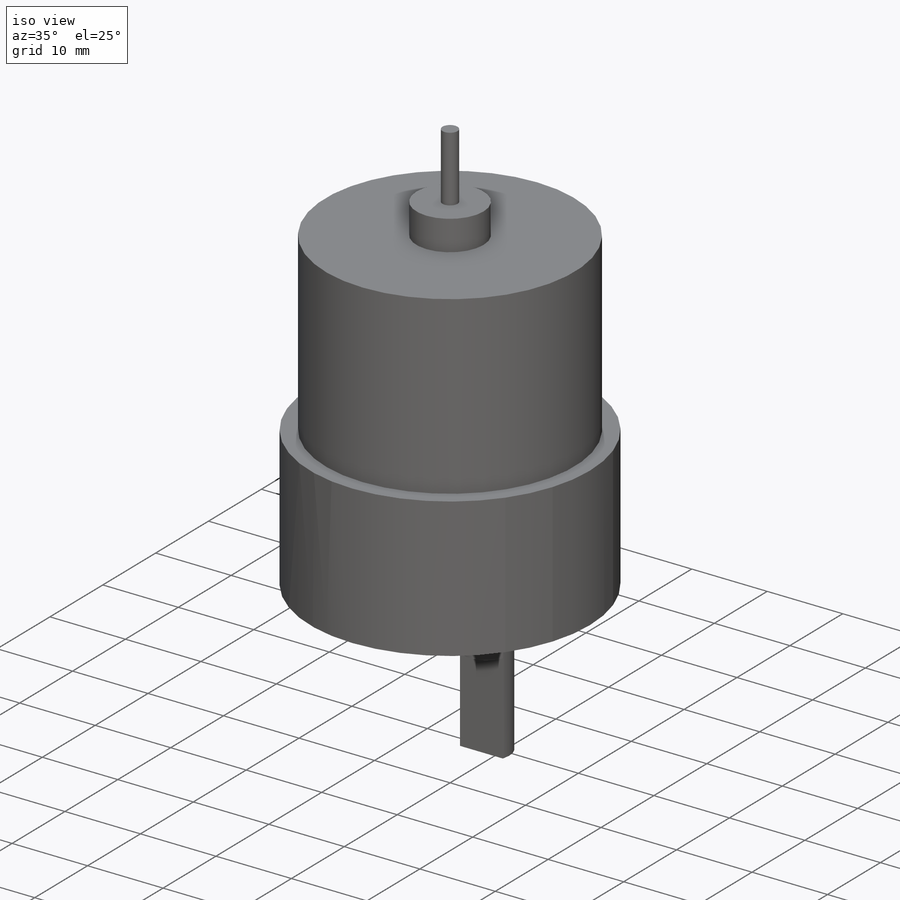
[diagram: iso view]
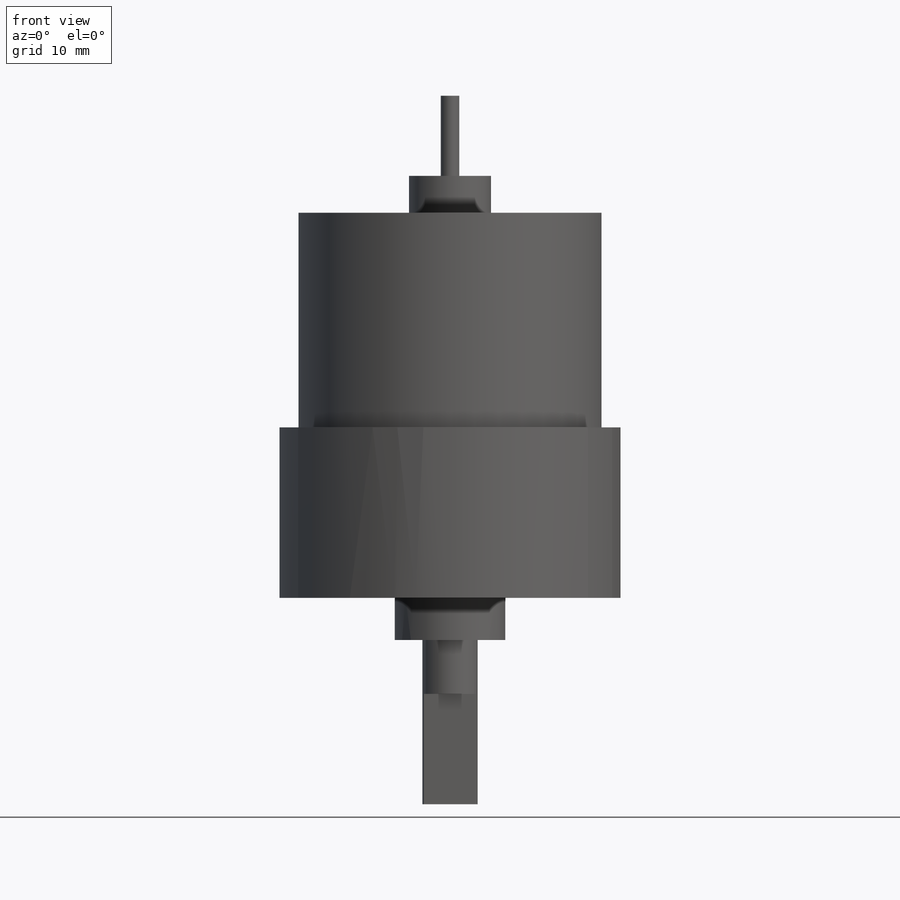
[diagram: front view]
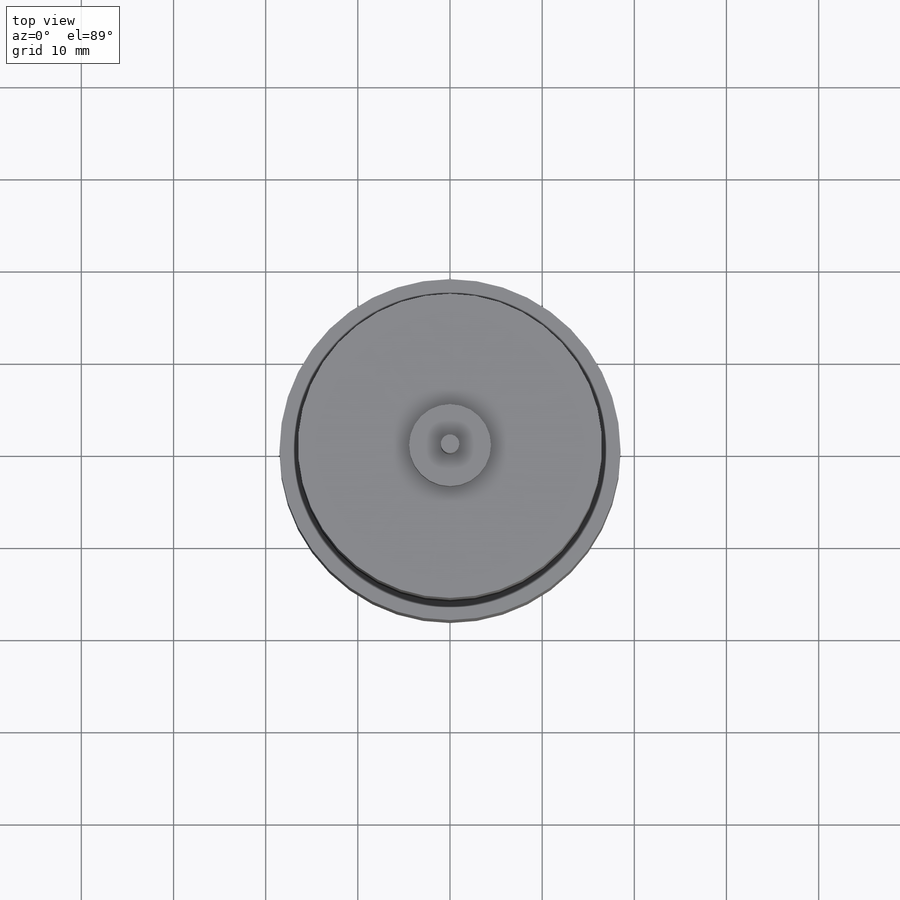
[diagram: top view]
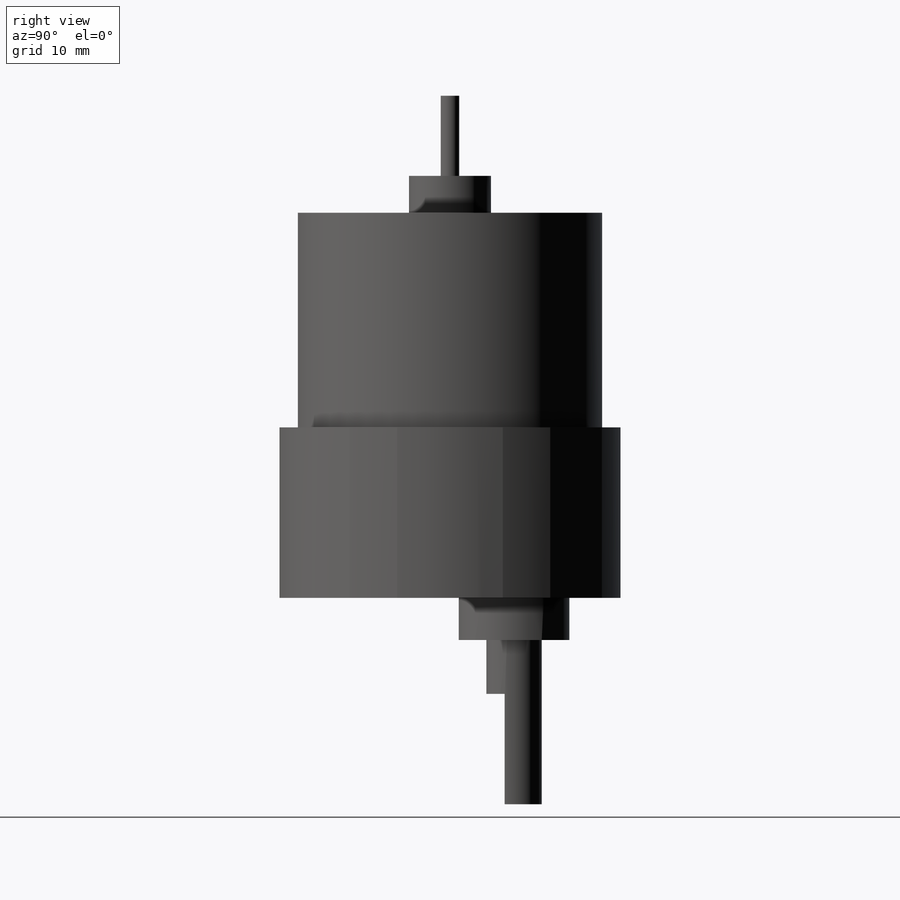
[diagram: right view]
SOLIDWORKS PART (.sldprt)
format: sldprt  version: not decoded by parser v0  size: 267,264 bytes
history: native  units: mm
features: sketch x11, extrude x5, plane x4, hole x2, material x1, revolve x1, cut_extrude x1 (+10 scaffold rows collapsed)
feature tree (35):
  scaffold x10  (default folders/planes/origin — collapsed)
  material  "Materiale <non specificato>"
  plane  "Piano frontale"
  plane  "Piano superiore"
  plane  "Piano destro"
  plane  "Piano1"
  sketch  "Schizzo1"  dims[D1=18.4912mm D2=18.5mm]
  revolve  "Rivoluzione1"  Angle=360deg
  sketch  "Schizzo2"  dims[D2=12.0mm D1=6.95mm]
  extrude  "Estrusione-Estrusione1"  Depth=4.572mm
  sketch  "Schizzo3"
  extrude  "Estrusione-Estrusione2"  Depth=17.83mm
  sketch  "Schizzo4"
  cut_extrude  "Taglio-Estrusione1"  Depth=11.98mm
  sketch  "Schizzo5"  dims[D1=33.0mm]
  extrude  "Estrusione-Estrusione3"  Depth=23.2918mm
  sketch  "Schizzo6"
  extrude  "Estrusione-Estrusione4"  Depth=4mm
  sketch  "Schizzo7"
  extrude  "Estrusione-Estrusione5"  Depth=8.7mm
  hole  "Foro Ø3.0 (3)-1"  Diameter=3mm Depth=6mm
  sketch  "Schizzo9"
  sketch  "Schizzo8"  dims[hole-wizard template sketch: 49 standard entries collapsed; hole parameters kept: c15.Drill Angle=180.0deg]
  hole  "Foro Ø3.0 (3)-2"  Diameter=3mm Depth=10mm
  sketch  "Schizzo11"
  sketch  "Schizzo10"  dims[hole-wizard template sketch: 49 standard entries collapsed; hole parameters kept: c15.Drill Angle=180.0deg]
decode coverage: 14 of 20 modeling features carry decoded parameters
note: ~ marks probable driven/reference dimensions
note: suppression state not decoded; provenance and decode notes live in map.json
